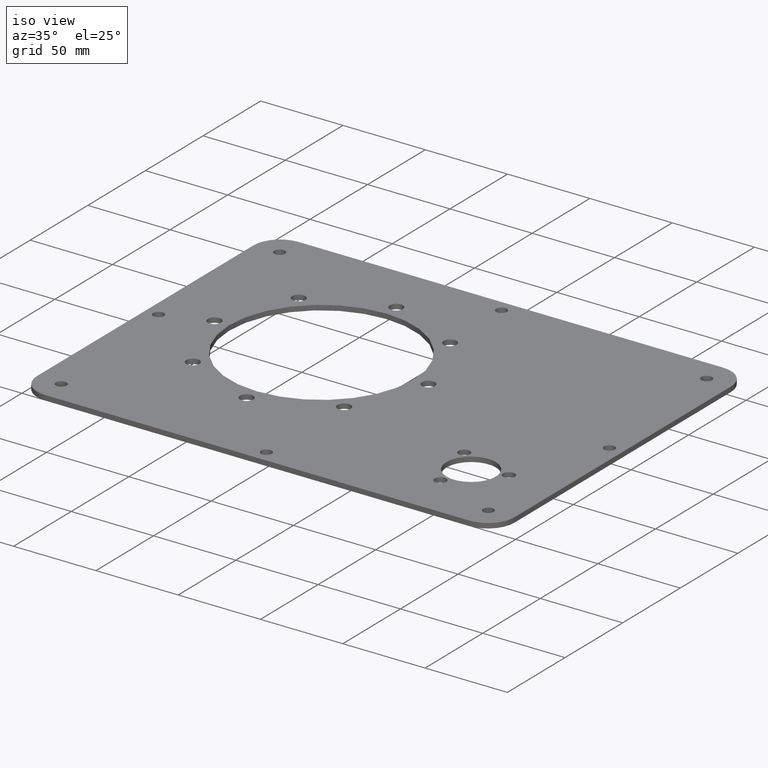
[diagram: clean part render]
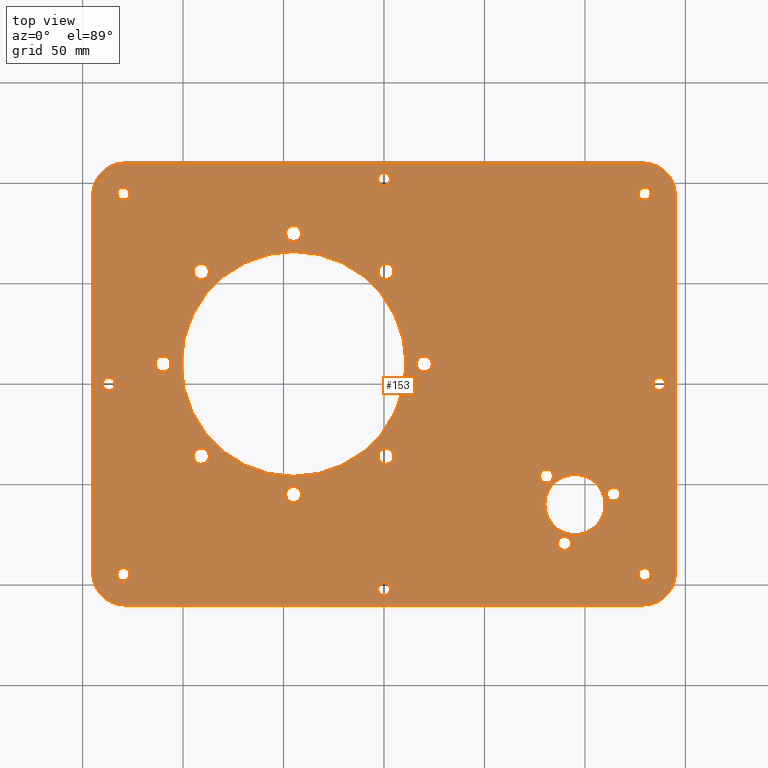
[diagram: tour spotlight — one face highlighted and labeled with its STEP entity id]
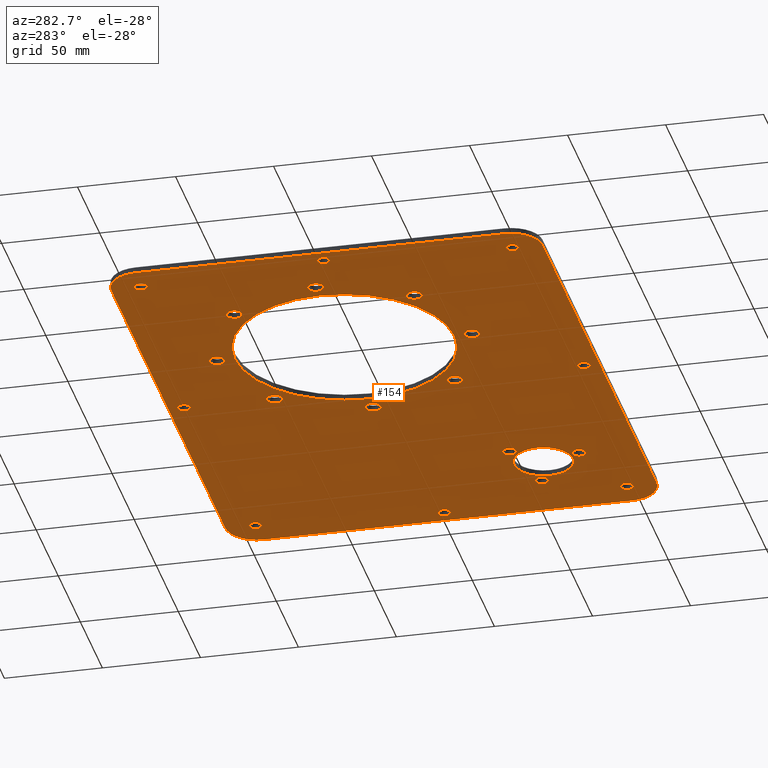
[diagram: tour spotlight — one face highlighted and labeled with its STEP entity id]
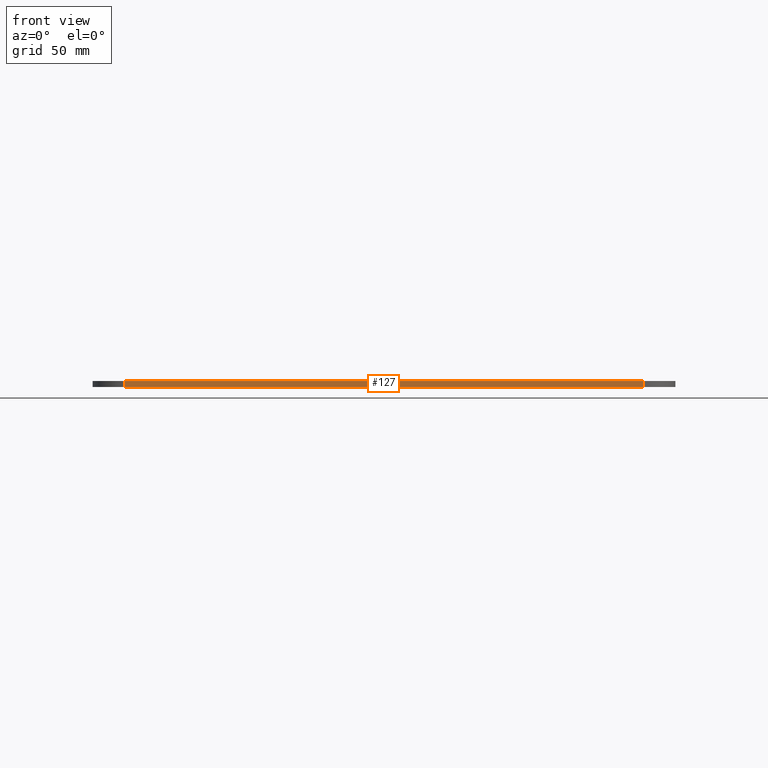
[diagram: tour spotlight — one face highlighted and labeled with its STEP entity id]
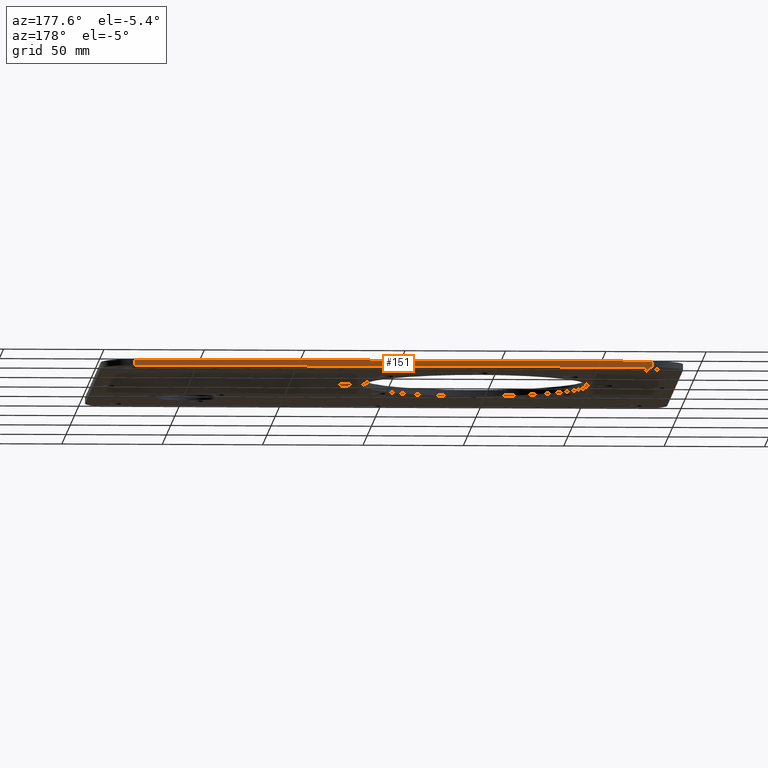
[diagram: tour spotlight — one face highlighted and labeled with its STEP entity id]
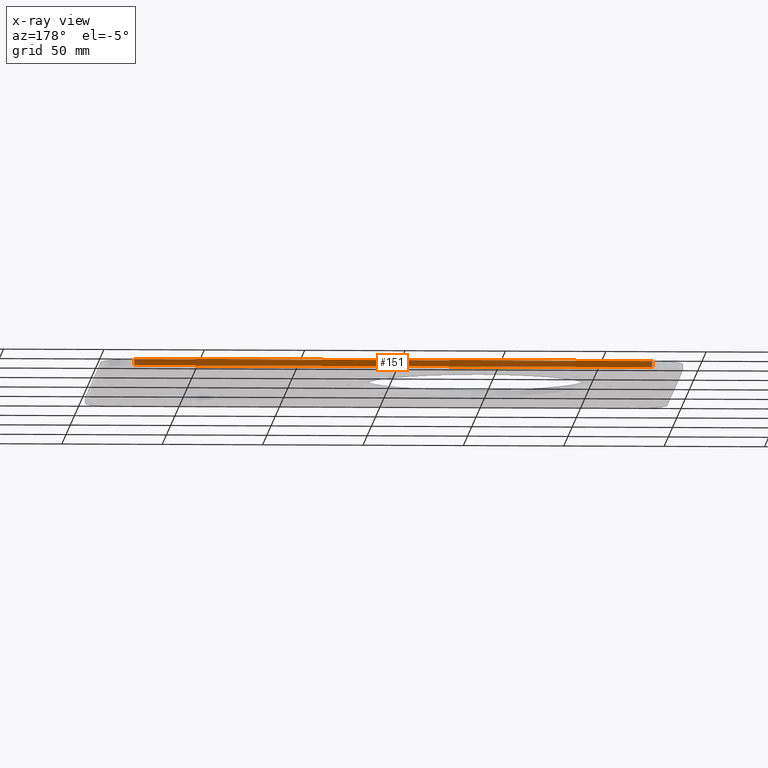
[diagram: x-ray of the same camera — body ghosted, this tour face saturated]
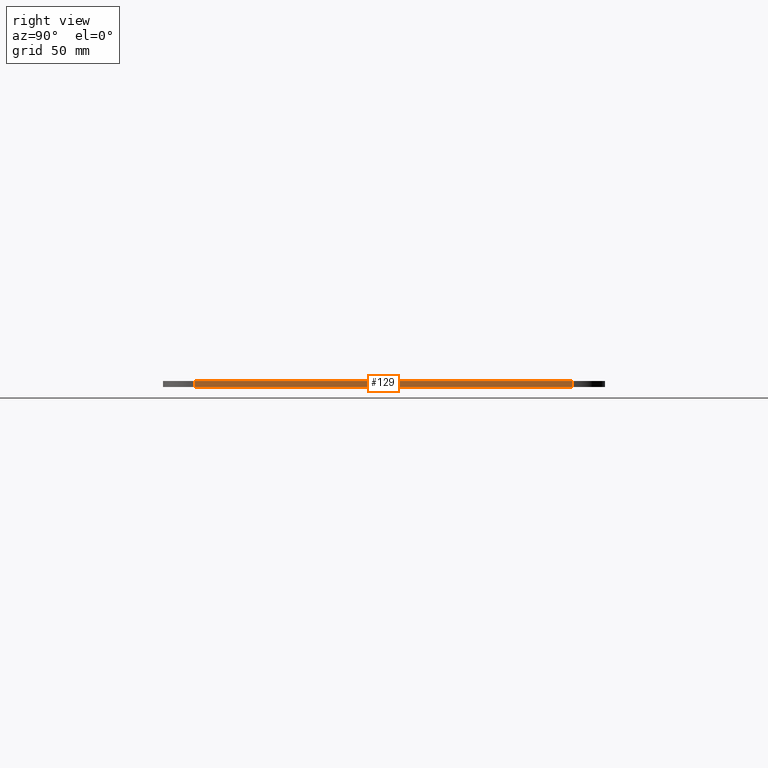
[diagram: tour spotlight — one face highlighted and labeled with its STEP entity id]
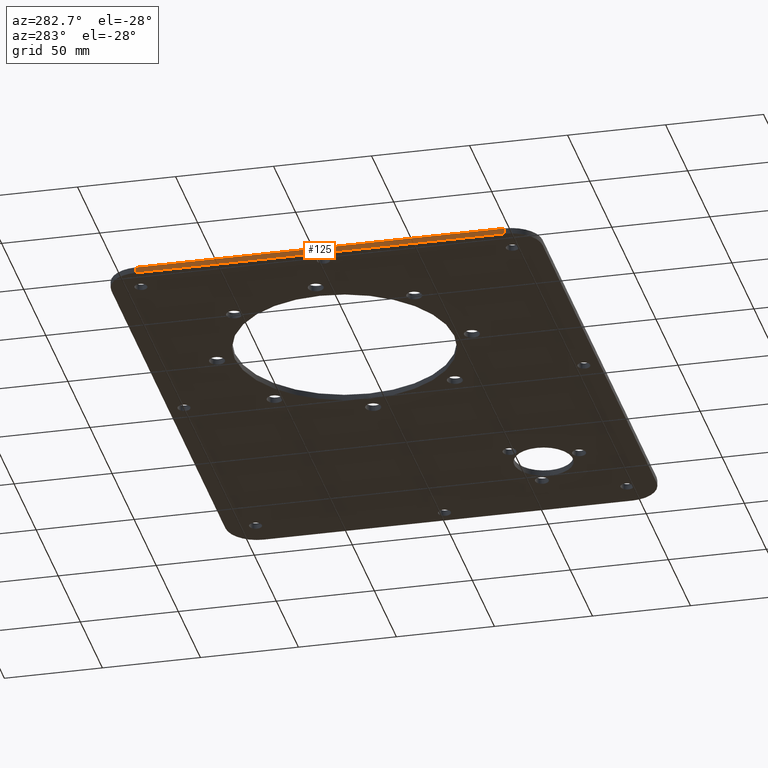
[diagram: tour spotlight — one face highlighted and labeled with its STEP entity id]
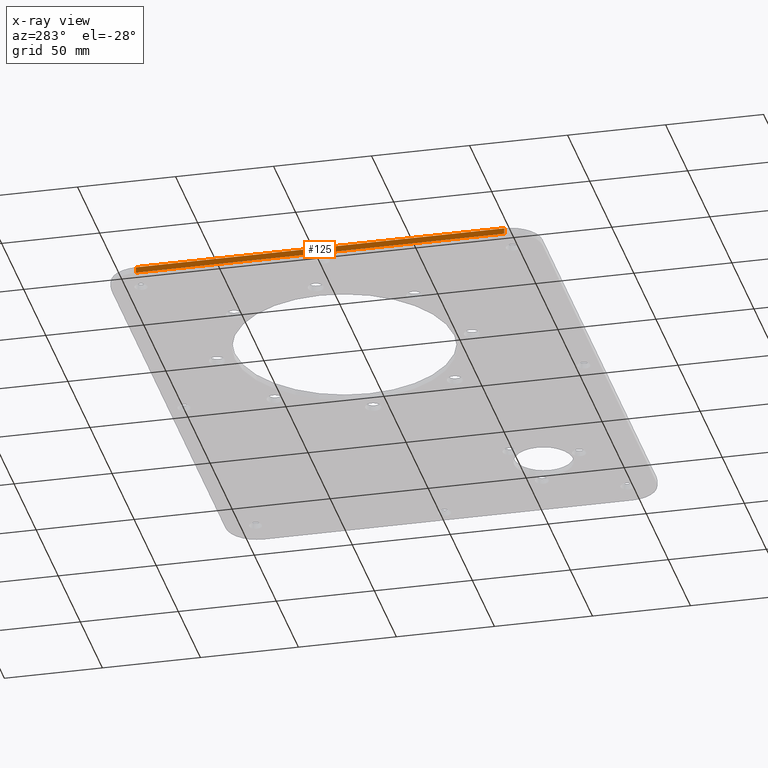
[diagram: x-ray of the same camera — body ghosted, this tour face saturated]
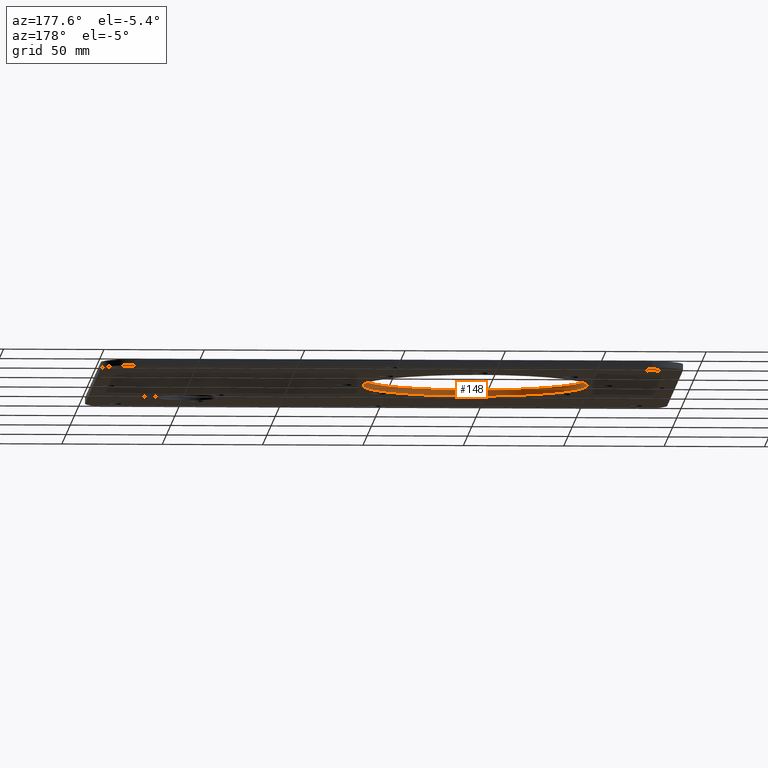
[diagram: tour spotlight — one face highlighted and labeled with its STEP entity id]
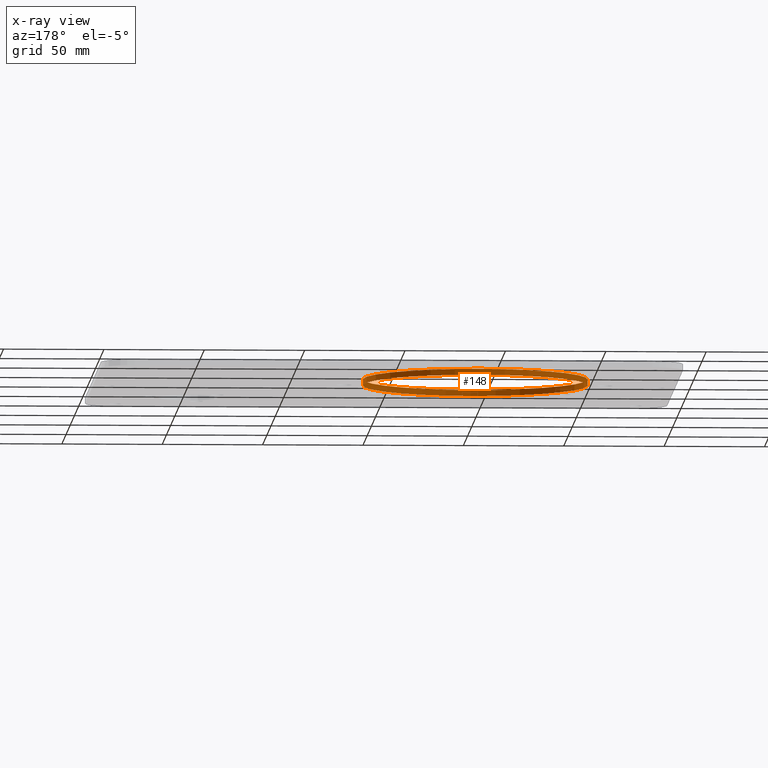
[diagram: x-ray of the same camera — body ghosted, this tour face saturated]
A machine part: a face-by-face anatomy tour. The part has 31 B-rep faces; the first image is the clean iso view, then the 7 largest visible faces are spotlighted one at a time (largest first), each with its STEP entity span.

Face 1 — top view, entity #153. In plain terms, the highlighted planar face has unit normal (0, 0, 1).
Definition (entity closure, byte-faithful):
#76=FACE_BOUND('',#241,.T.);
#77=FACE_BOUND('',#242,.T.);
#78=FACE_BOUND('',#243,.T.);
#79=FACE_BOUND('',#244,.T.);
#80=FACE_BOUND('',#245,.T.);
#81=FACE_BOUND('',#246,.T.);
#82=FACE_BOUND('',#247,.T.);
#83=FACE_BOUND('',#248,.T.);
#84=FACE_BOUND('',#249,.T.);
#85=FACE_BOUND('',#250,.T.);
#86=FACE_BOUND('',#251,.T.);
#87=FACE_BOUND('',#252,.T.);
#88=FACE_BOUND('',#253,.T.);
#89=FACE_BOUND('',#254,.T.);
#90=FACE_BOUND('',#255,.T.);
#91=FACE_BOUND('',#256,.T.);
#92=FACE_BOUND('',#257,.T.);
#93=FACE_BOUND('',#258,.T.);
#94=FACE_BOUND('',#259,.T.);
#95=FACE_BOUND('',#260,.T.);
#96=FACE_BOUND('',#261,.T.);
#122=PLANE('',#702);
#153=ADVANCED_FACE('',(#188,#76,#77,#78,#79,#80,#81,#82,#83,#84,#85,#86,
#87,#88,#89,#90,#91,#92,#93,#94,#95,#96),#122,.T.);
#188=FACE_OUTER_BOUND('',#240,.T.);
#240=EDGE_LOOP('',(#390,#391,#392,#393,#394,#395,#396,#397));
#241=EDGE_LOOP('',(#398));
#242=EDGE_LOOP('',(#399));
#243=EDGE_LOOP('',(#400));
#244=EDGE_LOOP('',(#401));
#245=EDGE_LOOP('',(#402));
#246=EDGE_LOOP('',(#403));
#247=EDGE_LOOP('',(#404));
#248=EDGE_LOOP('',(#405));
#249=EDGE_LOOP('',(#406));
#250=EDGE_LOOP('',(#407));
#251=EDGE_LOOP('',(#408));
#252=EDGE_LOOP('',(#409));
#253=EDGE_LOOP('',(#410));
#254=EDGE_LOOP('',(#411));
#255=EDGE_LOOP('',(#412));
#256=EDGE_LOOP('',(#413));
#257=EDGE_LOOP('',(#414));
#258=EDGE_LOOP('',(#415));
#259=EDGE_LOOP('',(#416));
#260=EDGE_LOOP('',(#417));
#261=EDGE_LOOP('',(#418));
#288=LINE('',#898,#304);
#292=LINE('',#910,#308);
#296=LINE('',#922,#312);
#299=LINE('',#1031,#315);
#304=VECTOR('',#716,1.);
#308=VECTOR('',#728,1.);
#312=VECTOR('',#740,1.);
#315=VECTOR('',#871,1.);
#390=ORIENTED_EDGE('',*,*,#508,.T.);
#391=ORIENTED_EDGE('',*,*,#512,.T.);
#392=ORIENTED_EDGE('',*,*,#515,.T.);
#393=ORIENTED_EDGE('',*,*,#518,.T.);
#394=ORIENTED_EDGE('',*,*,#521,.T.);
#395=ORIENTED_EDGE('',*,*,#524,.T.);
#396=ORIENTED_EDGE('',*,*,#527,.T.);
#397=ORIENTED_EDGE('',*,*,#569,.T.);
#398=ORIENTED_EDGE('',*,*,#566,.F.);
#399=ORIENTED_EDGE('',*,*,#564,.F.);
#400=ORIENTED_EDGE('',*,*,#562,.F.);
#401=ORIENTED_EDGE('',*,*,#560,.F.);
#402=ORIENTED_EDGE('',*,*,#558,.F.);
#403=ORIENTED_EDGE('',*,*,#556,.F.);
#404=ORIENTED_EDGE('',*,*,#554,.F.);
#405=ORIENTED_EDGE('',*,*,#552,.F.);
#406=ORIENTED_EDGE('',*,*,#550,.F.);
#407=ORIENTED_EDGE('',*,*,#548,.T.);
#408=ORIENTED_EDGE('',*,*,#546,.F.);
#409=ORIENTED_EDGE('',*,*,#544,.F.);
#410=ORIENTED_EDGE('',*,*,#542,.F.);
#411=ORIENTED_EDGE('',*,*,#540,.T.);
#412=ORIENTED_EDGE('',*,*,#538,.F.);
#413=ORIENTED_EDGE('',*,*,#536,.F.);
#414=ORIENTED_EDGE('',*,*,#534,.T.);
#415=ORIENTED_EDGE('',*,*,#532,.F.);
#416=ORIENTED_EDGE('',*,*,#530,.F.);
#417=ORIENTED_EDGE('',*,*,#528,.T.);
#418=ORIENTED_EDGE('',*,*,#570,.F.);
#450=VERTEX_POINT('',#889);
#451=VERTEX_POINT('',#891);
#453=VERTEX_POINT('',#897);
#455=VERTEX_POINT('',#903);
#457=VERTEX_POINT('',#909);
#459=VERTEX_POINT('',#915);
#461=VERTEX_POINT('',#921);
#463=VERTEX_POINT('',#927);
#464=VERTEX_POINT('',#931);
#466=VERTEX_POINT('',#936);
#468=VERTEX_POINT('',#941);
#470=VERTEX_POINT('',#946);
#472=VERTEX_POINT('',#951);
#474=VERTEX_POINT('',#956);
#476=VERTEX_POINT('',#961);
#478=VERTEX_POINT('',#966);
#480=VERTEX_POINT('',#971);
#482=VERTEX_POINT('',#976);
#484=VERTEX_POINT('',#981);
#486=VERTEX_POINT('',#986);
#488=VERTEX_POINT('',#991);
#490=VERTEX_POINT('',#996);
#492=VERTEX_POINT('',#1001);
#494=VERTEX_POINT('',#1006);
#496=VERTEX_POINT('',#1011);
#498=VERTEX_POINT('',#1016);
#500=VERTEX_POINT('',#1021);
#502=VERTEX_POINT('',#1026);
#504=VERTEX_POINT('',#1034);
#508=EDGE_CURVE('',#451,#450,#573,.T.);
#512=EDGE_CURVE('',#450,#453,#288,.T.);
#515=EDGE_CURVE('',#453,#455,#575,.T.);
#518=EDGE_CURVE('',#455,#457,#292,.T.);
#521=EDGE_CURVE('',#457,#459,#577,.T.);
#524=EDGE_CURVE('',#459,#461,#296,.T.);
#527=EDGE_CURVE('',#461,#463,#579,.T.);
#528=EDGE_CURVE('',#464,#464,#580,.T.);
#530=EDGE_CURVE('',#466,#466,#582,.T.);
#532=EDGE_CURVE('',#468,#468,#584,.T.);
#534=EDGE_CURVE('',#470,#470,#586,.T.);
#536=EDGE_CURVE('',#472,#472,#588,.T.);
#538=EDGE_CURVE('',#474,#474,#590,.T.);
#540=EDGE_CURVE('',#476,#476,#592,.T.);
#542=EDGE_CURVE('',#478,#478,#594,.T.);
#544=EDGE_CURVE('',#480,#480,#596,.T.);
#546=EDGE_CURVE('',#482,#482,#598,.T.);
#548=EDGE_CURVE('',#484,#484,#600,.T.);
#550=EDGE_CURVE('',#486,#486,#602,.T.);
#552=EDGE_CURVE('',#488,#488,#604,.T.);
#554=EDGE_CURVE('',#490,#490,#606,.T.);
#556=EDGE_CURVE('',#492,#492,#608,.T.);
#558=EDGE_CURVE('',#494,#494,#610,.T.);
#560=EDGE_CURVE('',#496,#496,#612,.T.);
#562=EDGE_CURVE('',#498,#498,#614,.T.);
#564=EDGE_CURVE('',#500,#500,#616,.T.);
#566=EDGE_CURVE('',#502,#502,#618,.T.);
#569=EDGE_CURVE('',#463,#451,#299,.T.);
#570=EDGE_CURVE('',#504,#504,#620,.T.);
#573=CIRCLE('',#624,16.);
#575=CIRCLE('',#628,16.);
#577=CIRCLE('',#632,16.);
#579=CIRCLE('',#636,16.);
#580=CIRCLE('',#638,3.25);
#582=CIRCLE('',#641,4.);
#584=CIRCLE('',#644,4.);
#586=CIRCLE('',#647,3.25);
#588=CIRCLE('',#650,3.5);
#590=CIRCLE('',#653,3.5);
#592=CIRCLE('',#656,3.25);
#594=CIRCLE('',#659,4.);
#596=CIRCLE('',#662,15.);
#598=CIRCLE('',#665,4.);
#600=CIRCLE('',#668,3.25);
#602=CIRCLE('',#671,3.25);
#604=CIRCLE('',#674,4.);
#606=CIRCLE('',#677,3.25);
#608=CIRCLE('',#680,3.25);
#610=CIRCLE('',#683,3.5);
#612=CIRCLE('',#686,4.);
#614=CIRCLE('',#689,56.);
#616=CIRCLE('',#692,4.);
#618=CIRCLE('',#695,4.);
#620=CIRCLE('',#699,3.25);
#624=AXIS2_PLACEMENT_3D('',#890,#709,#710);
#628=AXIS2_PLACEMENT_3D('',#904,#722,#723);
#632=AXIS2_PLACEMENT_3D('',#916,#734,#735);
#636=AXIS2_PLACEMENT_3D('',#928,#746,#747);
#638=AXIS2_PLACEMENT_3D('',#930,#750,#751);
#641=AXIS2_PLACEMENT_3D('',#935,#756,#757);
#644=AXIS2_PLACEMENT_3D('',#940,#762,#763);
#647=AXIS2_PLACEMENT_3D('',#945,#768,#769);
#650=AXIS2_PLACEMENT_3D('',#950,#774,#775);
#653=AXIS2_PLACEMENT_3D('',#955,#780,#781);
#656=AXIS2_PLACEMENT_3D('',#960,#786,#787);
#659=AXIS2_PLACEMENT_3D('',#965,#792,#793);
#662=AXIS2_PLACEMENT_3D('',#970,#798,#799);
#665=AXIS2_PLACEMENT_3D('',#975,#804,#805);
#668=AXIS2_PLACEMENT_3D('',#980,#810,#811);
#671=AXIS2_PLACEMENT_3D('',#985,#816,#817);
#674=AXIS2_PLACEMENT_3D('',#990,#822,#823);
#677=AXIS2_PLACEMENT_3D('',#995,#828,#829);
#680=AXIS2_PLACEMENT_3D('',#1000,#834,#835);
#683=AXIS2_PLACEMENT_3D('',#1005,#840,#841);
#686=AXIS2_PLACEMENT_3D('',#1010,#846,#847);
#689=AXIS2_PLACEMENT_3D('',#1015,#852,#853);
#692=AXIS2_PLACEMENT_3D('',#1020,#858,#859);
#695=AXIS2_PLACEMENT_3D('',#1025,#864,#865);
#699=AXIS2_PLACEMENT_3D('',#1033,#874,#875);
#702=AXIS2_PLACEMENT_3D('',#1038,#880,#881);
#709=DIRECTION('',(0.,0.,1.));
#710=DIRECTION('',(1.,0.,0.));
#716=DIRECTION('',(0.,-1.,0.));
#722=DIRECTION('',(0.,0.,1.));
#723=DIRECTION('',(1.,0.,0.));
#728=DIRECTION('',(1.,0.,0.));
#734=DIRECTION('',(0.,0.,1.));
#735=DIRECTION('',(1.,0.,0.));
#740=DIRECTION('',(0.,1.,0.));
#746=DIRECTION('',(0.,0.,1.));
#747=DIRECTION('',(1.,0.,0.));
#750=DIRECTION('',(0.,0.,-1.));
#751=DIRECTION('',(-1.00000000000013,0.,0.));
#756=DIRECTION('',(0.,0.,1.));
#757=DIRECTION('',(0.,1.,0.));
#762=DIRECTION('',(0.,0.,1.));
#763=DIRECTION('',(0.707106781186573,-0.707106781186573,0.));
#768=DIRECTION('',(0.,0.,-1.));
#769=DIRECTION('',(-1.00000000000013,0.,0.));
#774=DIRECTION('',(0.,0.,1.));
#775=DIRECTION('',(-0.258819045102499,-0.96592582628904,0.));
#780=DIRECTION('',(0.,0.,1.));
#781=DIRECTION('',(-0.707106781186541,0.707106781186541,0.));
#786=DIRECTION('',(0.,0.,-1.));
#787=DIRECTION('',(1.00000000000013,0.,0.));
#792=DIRECTION('',(0.,0.,1.));
#793=DIRECTION('',(-0.707106781186573,0.707106781186573,0.));
#798=DIRECTION('',(0.,0.,1.));
#799=DIRECTION('',(0.999999999999979,0.,0.));
#804=DIRECTION('',(0.,0.,1.));
#805=DIRECTION('',(0.,-1.,0.));
#810=DIRECTION('',(0.,0.,-1.));
#811=DIRECTION('',(1.00000000000013,0.,0.));
#816=DIRECTION('',(0.,0.,1.));
#817=DIRECTION('',(1.00000000000013,0.,0.));
#822=DIRECTION('',(0.,0.,1.));
#823=DIRECTION('',(0.707106781186573,0.707106781186573,0.));
#828=DIRECTION('',(0.,0.,1.));
#829=DIRECTION('',(-1.00000000000013,0.,0.));
#834=DIRECTION('',(0.,0.,1.));
#835=DIRECTION('',(1.00000000000013,0.,0.));
#840=DIRECTION('',(0.,0.,1.));
#841=DIRECTION('',(0.96592582628904,0.258819045102499,0.));
#846=DIRECTION('',(0.,0.,1.));
#847=DIRECTION('',(-0.99999999999989,0.,0.));
#852=DIRECTION('',(0.,0.,1.));
#853=DIRECTION('',(1.,0.,0.));
#858=DIRECTION('',(0.,0.,1.));
#859=DIRECTION('',(-0.707106781186573,-0.707106781186573,0.));
#864=DIRECTION('',(0.,0.,1.));
#865=DIRECTION('',(0.99999999999989,0.,0.));
#871=DIRECTION('',(-1.,0.,0.));
#874=DIRECTION('',(0.,0.,1.));
#875=DIRECTION('',(1.00000000000013,0.,0.));
#880=DIRECTION('',(0.,0.,1.));
#881=DIRECTION('',(1.,0.,0.));
#889=CARTESIAN_POINT('',(4855.,-1906.,3.));
#890=CARTESIAN_POINT('',(4871.,-1906.,3.));
#891=CARTESIAN_POINT('',(4871.,-1890.,3.));
#897=CARTESIAN_POINT('',(4855.,-2094.,3.));
#898=CARTESIAN_POINT('',(4855.,-1906.,3.));
#903=CARTESIAN_POINT('',(4871.,-2110.,3.));
#904=CARTESIAN_POINT('',(4871.,-2094.,3.));
#909=CARTESIAN_POINT('',(5129.,-2110.,3.));
#910=CARTESIAN_POINT('',(4871.,-2110.,3.));
#915=CARTESIAN_POINT('',(5145.,-2094.,3.));
#916=CARTESIAN_POINT('',(5129.,-2094.,3.));
#921=CARTESIAN_POINT('',(5145.,-1906.,3.));
#922=CARTESIAN_POINT('',(5145.,-2094.,3.));
#927=CARTESIAN_POINT('',(5129.,-1890.,3.));
#928=CARTESIAN_POINT('',(5129.,-1906.,3.));
#930=CARTESIAN_POINT('',(5129.72792206136,-1905.27207793864,3.));
#931=CARTESIAN_POINT('',(5126.47792206136,-1905.27207793864,3.));
#935=CARTESIAN_POINT('',(4955.,-1925.,3.));
#936=CARTESIAN_POINT('',(4955.,-1921.,3.));
#940=CARTESIAN_POINT('',(5000.96194077713,-2035.96194077712,3.));
#941=CARTESIAN_POINT('',(5003.79036790188,-2038.79036790187,3.));
#945=CARTESIAN_POINT('',(5137.,-2000.,3.));
#946=CARTESIAN_POINT('',(5133.75,-2000.,3.));
#950=CARTESIAN_POINT('',(5089.82361909796,-2079.31851652578,3.));
#951=CARTESIAN_POINT('',(5088.9177524401,-2082.6992569178,3.));
#955=CARTESIAN_POINT('',(5080.85786437627,-2045.85786437626,3.));
#956=CARTESIAN_POINT('',(5078.38299064212,-2043.38299064211,3.));
#960=CARTESIAN_POINT('',(4870.27207793864,-2094.72792206136,3.));
#961=CARTESIAN_POINT('',(4873.52207793864,-2094.72792206136,3.));
#965=CARTESIAN_POINT('',(4909.03805922287,-1944.03805922287,3.));
#966=CARTESIAN_POINT('',(4906.20963209813,-1941.20963209813,3.));
#970=CARTESIAN_POINT('',(5095.,-2060.,3.));
#971=CARTESIAN_POINT('',(5110.,-2060.,3.));
#975=CARTESIAN_POINT('',(4954.99999999953,-2055.00000000113,3.));
#976=CARTESIAN_POINT('',(4954.99999999953,-2059.00000000113,3.));
#980=CARTESIAN_POINT('',(5000.,-2102.,3.));
#981=CARTESIAN_POINT('',(5003.25,-2102.,3.));
#985=CARTESIAN_POINT('',(4870.27207793864,-1905.27207793864,3.));
#986=CARTESIAN_POINT('',(4873.52207793864,-1905.27207793864,3.));
#990=CARTESIAN_POINT('',(5000.96194077712,-1944.03805922287,3.));
#991=CARTESIAN_POINT('',(5003.79036790187,-1941.20963209813,3.));
#995=CARTESIAN_POINT('',(5129.72792206136,-2094.72792206136,3.));
#996=CARTESIAN_POINT('',(5126.47792206136,-2094.72792206136,3.));
#1000=CARTESIAN_POINT('',(4863.,-2000.,3.));
#1001=CARTESIAN_POINT('',(4866.25,-2000.,3.));
#1005=CARTESIAN_POINT('',(5114.31851652578,-2054.82361909795,3.));
#1006=CARTESIAN_POINT('',(5117.69925691779,-2053.91775244009,3.));
#1010=CARTESIAN_POINT('',(4890.,-1990.,3.));
#1011=CARTESIAN_POINT('',(4886.,-1990.,3.));
#1015=CARTESIAN_POINT('',(4955.,-1990.,3.));
#1016=CARTESIAN_POINT('',(5011.,-1990.,3.));
#1020=CARTESIAN_POINT('',(4909.03805922287,-2035.96194077713,3.));
#1021=CARTESIAN_POINT('',(4906.20963209813,-2038.79036790187,3.));
#1025=CARTESIAN_POINT('',(5020.,-1990.,3.));
#1026=CARTESIAN_POINT('',(5024.,-1990.,3.));
#1031=CARTESIAN_POINT('',(5129.,-1890.,3.));
#1033=CARTESIAN_POINT('',(5000.,-1898.,3.));
#1034=CARTESIAN_POINT('',(5003.25,-1898.,3.));
#1038=CARTESIAN_POINT('',(4871.,-1906.,3.));

Face 2 — auxiliary view, entity #154. In plain terms, the highlighted planar face has unit normal (0, 0, 1).
Definition (entity closure, byte-faithful):
#97=FACE_BOUND('',#263,.T.);
#98=FACE_BOUND('',#264,.T.);
#99=FACE_BOUND('',#265,.T.);
#100=FACE_BOUND('',#266,.T.);
#101=FACE_BOUND('',#267,.T.);
#102=FACE_BOUND('',#268,.T.);
#103=FACE_BOUND('',#269,.T.);
#104=FACE_BOUND('',#270,.T.);
#105=FACE_BOUND('',#271,.T.);
#106=FACE_BOUND('',#272,.T.);
#107=FACE_BOUND('',#273,.T.);
#108=FACE_BOUND('',#274,.T.);
#109=FACE_BOUND('',#275,.T.);
#110=FACE_BOUND('',#276,.T.);
#111=FACE_BOUND('',#277,.T.);
#112=FACE_BOUND('',#278,.T.);
#113=FACE_BOUND('',#279,.T.);
#114=FACE_BOUND('',#280,.T.);
#115=FACE_BOUND('',#281,.T.);
#116=FACE_BOUND('',#282,.T.);
#117=FACE_BOUND('',#283,.T.);
#123=PLANE('',#703);
#154=ADVANCED_FACE('',(#189,#97,#98,#99,#100,#101,#102,#103,#104,#105,#106,
#107,#108,#109,#110,#111,#112,#113,#114,#115,#116,#117),#123,.F.);
#189=FACE_OUTER_BOUND('',#262,.T.);
#262=EDGE_LOOP('',(#419,#420,#421,#422,#423,#424,#425,#426));
#263=EDGE_LOOP('',(#427));
#264=EDGE_LOOP('',(#428));
#265=EDGE_LOOP('',(#429));
#266=EDGE_LOOP('',(#430));
#267=EDGE_LOOP('',(#431));
#268=EDGE_LOOP('',(#432));
#269=EDGE_LOOP('',(#433));
#270=EDGE_LOOP('',(#434));
#271=EDGE_LOOP('',(#435));
#272=EDGE_LOOP('',(#436));
#273=EDGE_LOOP('',(#437));
#274=EDGE_LOOP('',(#438));
#275=EDGE_LOOP('',(#439));
#276=EDGE_LOOP('',(#440));
#277=EDGE_LOOP('',(#441));
#278=EDGE_LOOP('',(#442));
#279=EDGE_LOOP('',(#443));
#280=EDGE_LOOP('',(#444));
#281=EDGE_LOOP('',(#445));
#282=EDGE_LOOP('',(#446));
#283=EDGE_LOOP('',(#447));
#286=LINE('',#894,#302);
#290=LINE('',#906,#306);
#294=LINE('',#918,#310);
#298=LINE('',#1030,#314);
#302=VECTOR('',#714,1.);
#306=VECTOR('',#726,1.);
#310=VECTOR('',#738,1.);
#314=VECTOR('',#870,1.);
#419=ORIENTED_EDGE('',*,*,#506,.F.);
#420=ORIENTED_EDGE('',*,*,#568,.F.);
#421=ORIENTED_EDGE('',*,*,#525,.F.);
#422=ORIENTED_EDGE('',*,*,#522,.F.);
#423=ORIENTED_EDGE('',*,*,#519,.F.);
#424=ORIENTED_EDGE('',*,*,#516,.F.);
#425=ORIENTED_EDGE('',*,*,#513,.F.);
#426=ORIENTED_EDGE('',*,*,#510,.F.);
#427=ORIENTED_EDGE('',*,*,#567,.T.);
#428=ORIENTED_EDGE('',*,*,#565,.T.);
#429=ORIENTED_EDGE('',*,*,#563,.T.);
#430=ORIENTED_EDGE('',*,*,#561,.T.);
#431=ORIENTED_EDGE('',*,*,#559,.T.);
#432=ORIENTED_EDGE('',*,*,#557,.T.);
#433=ORIENTED_EDGE('',*,*,#555,.T.);
#434=ORIENTED_EDGE('',*,*,#553,.T.);
#435=ORIENTED_EDGE('',*,*,#551,.T.);
#436=ORIENTED_EDGE('',*,*,#549,.F.);
#437=ORIENTED_EDGE('',*,*,#547,.T.);
#438=ORIENTED_EDGE('',*,*,#545,.T.);
#439=ORIENTED_EDGE('',*,*,#543,.T.);
#440=ORIENTED_EDGE('',*,*,#541,.F.);
#441=ORIENTED_EDGE('',*,*,#539,.T.);
#442=ORIENTED_EDGE('',*,*,#537,.T.);
#443=ORIENTED_EDGE('',*,*,#535,.F.);
#444=ORIENTED_EDGE('',*,*,#533,.T.);
#445=ORIENTED_EDGE('',*,*,#531,.T.);
#446=ORIENTED_EDGE('',*,*,#529,.F.);
#447=ORIENTED_EDGE('',*,*,#571,.T.);
#448=VERTEX_POINT('',#886);
#449=VERTEX_POINT('',#887);
#452=VERTEX_POINT('',#895);
#454=VERTEX_POINT('',#901);
#456=VERTEX_POINT('',#907);
#458=VERTEX_POINT('',#913);
#460=VERTEX_POINT('',#919);
#462=VERTEX_POINT('',#925);
#465=VERTEX_POINT('',#933);
#467=VERTEX_POINT('',#938);
#469=VERTEX_POINT('',#943);
#471=VERTEX_POINT('',#948);
#473=VERTEX_POINT('',#953);
#475=VERTEX_POINT('',#958);
#477=VERTEX_POINT('',#963);
#479=VERTEX_POINT('',#968);
#481=VERTEX_POINT('',#973);
#483=VERTEX_POINT('',#978);
#485=VERTEX_POINT('',#983);
#487=VERTEX_POINT('',#988);
#489=VERTEX_POINT('',#993);
#491=VERTEX_POINT('',#998);
#493=VERTEX_POINT('',#1003);
#495=VERTEX_POINT('',#1008);
#497=VERTEX_POINT('',#1013);
#499=VERTEX_POINT('',#1018);
#501=VERTEX_POINT('',#1023);
#503=VERTEX_POINT('',#1028);
#505=VERTEX_POINT('',#1036);
#506=EDGE_CURVE('',#448,#449,#572,.T.);
#510=EDGE_CURVE('',#449,#452,#286,.T.);
#513=EDGE_CURVE('',#452,#454,#574,.T.);
#516=EDGE_CURVE('',#454,#456,#290,.T.);
#519=EDGE_CURVE('',#456,#458,#576,.T.);
#522=EDGE_CURVE('',#458,#460,#294,.T.);
#525=EDGE_CURVE('',#460,#462,#578,.T.);
#529=EDGE_CURVE('',#465,#465,#581,.T.);
#531=EDGE_CURVE('',#467,#467,#583,.T.);
#533=EDGE_CURVE('',#469,#469,#585,.T.);
#535=EDGE_CURVE('',#471,#471,#587,.T.);
#537=EDGE_CURVE('',#473,#473,#589,.T.);
#539=EDGE_CURVE('',#475,#475,#591,.T.);
#541=EDGE_CURVE('',#477,#477,#593,.T.);
#543=EDGE_CURVE('',#479,#479,#595,.T.);
#545=EDGE_CURVE('',#481,#481,#597,.T.);
#547=EDGE_CURVE('',#483,#483,#599,.T.);
#549=EDGE_CURVE('',#485,#485,#601,.T.);
#551=EDGE_CURVE('',#487,#487,#603,.T.);
#553=EDGE_CURVE('',#489,#489,#605,.T.);
#555=EDGE_CURVE('',#491,#491,#607,.T.);
#557=EDGE_CURVE('',#493,#493,#609,.T.);
#559=EDGE_CURVE('',#495,#495,#611,.T.);
#561=EDGE_CURVE('',#497,#497,#613,.T.);
#563=EDGE_CURVE('',#499,#499,#615,.T.);
#565=EDGE_CURVE('',#501,#501,#617,.T.);
#567=EDGE_CURVE('',#503,#503,#619,.T.);
#568=EDGE_CURVE('',#462,#448,#298,.T.);
#571=EDGE_CURVE('',#505,#505,#621,.T.);
#572=CIRCLE('',#623,16.);
#574=CIRCLE('',#627,16.);
#576=CIRCLE('',#631,16.);
#578=CIRCLE('',#635,16.);
#581=CIRCLE('',#639,3.25);
#583=CIRCLE('',#642,4.);
#585=CIRCLE('',#645,4.);
#587=CIRCLE('',#648,3.25);
#589=CIRCLE('',#651,3.5);
#591=CIRCLE('',#654,3.5);
#593=CIRCLE('',#657,3.25);
#595=CIRCLE('',#660,4.);
#597=CIRCLE('',#663,15.);
#599=CIRCLE('',#666,4.);
#601=CIRCLE('',#669,3.25);
#603=CIRCLE('',#672,3.25);
#605=CIRCLE('',#675,4.);
#607=CIRCLE('',#678,3.25);
#609=CIRCLE('',#681,3.25);
#611=CIRCLE('',#684,3.5);
#613=CIRCLE('',#687,4.);
#615=CIRCLE('',#690,56.);
#617=CIRCLE('',#693,4.);
#619=CIRCLE('',#696,4.);
#621=CIRCLE('',#700,3.25);
#623=AXIS2_PLACEMENT_3D('',#885,#706,#707);
#627=AXIS2_PLACEMENT_3D('',#900,#719,#720);
#631=AXIS2_PLACEMENT_3D('',#912,#731,#732);
#635=AXIS2_PLACEMENT_3D('',#924,#743,#744);
#639=AXIS2_PLACEMENT_3D('',#932,#752,#753);
#642=AXIS2_PLACEMENT_3D('',#937,#758,#759);
#645=AXIS2_PLACEMENT_3D('',#942,#764,#765);
#648=AXIS2_PLACEMENT_3D('',#947,#770,#771);
#651=AXIS2_PLACEMENT_3D('',#952,#776,#777);
#654=AXIS2_PLACEMENT_3D('',#957,#782,#783);
#657=AXIS2_PLACEMENT_3D('',#962,#788,#789);
#660=AXIS2_PLACEMENT_3D('',#967,#794,#795);
#663=AXIS2_PLACEMENT_3D('',#972,#800,#801);
#666=AXIS2_PLACEMENT_3D('',#977,#806,#807);
#669=AXIS2_PLACEMENT_3D('',#982,#812,#813);
#672=AXIS2_PLACEMENT_3D('',#987,#818,#819);
#675=AXIS2_PLACEMENT_3D('',#992,#824,#825);
#678=AXIS2_PLACEMENT_3D('',#997,#830,#831);
#681=AXIS2_PLACEMENT_3D('',#1002,#836,#837);
#684=AXIS2_PLACEMENT_3D('',#1007,#842,#843);
#687=AXIS2_PLACEMENT_3D('',#1012,#848,#849);
#690=AXIS2_PLACEMENT_3D('',#1017,#854,#855);
#693=AXIS2_PLACEMENT_3D('',#1022,#860,#861);
#696=AXIS2_PLACEMENT_3D('',#1027,#866,#867);
#700=AXIS2_PLACEMENT_3D('',#1035,#876,#877);
#703=AXIS2_PLACEMENT_3D('',#1039,#882,#883);
#706=DIRECTION('',(0.,0.,1.));
#707=DIRECTION('',(1.,0.,0.));
#714=DIRECTION('',(0.,-1.,0.));
#719=DIRECTION('',(0.,0.,1.));
#720=DIRECTION('',(1.,0.,0.));
#726=DIRECTION('',(1.,0.,0.));
#731=DIRECTION('',(0.,0.,1.));
#732=DIRECTION('',(1.,0.,0.));
#738=DIRECTION('',(0.,1.,0.));
#743=DIRECTION('',(0.,0.,1.));
#744=DIRECTION('',(1.,0.,0.));
#752=DIRECTION('',(0.,0.,-1.));
#753=DIRECTION('',(-1.00000000000013,0.,0.));
#758=DIRECTION('',(0.,0.,1.));
#759=DIRECTION('',(0.,1.,0.));
#764=DIRECTION('',(0.,0.,1.));
#765=DIRECTION('',(0.707106781186573,-0.707106781186573,0.));
#770=DIRECTION('',(0.,0.,-1.));
#771=DIRECTION('',(-1.00000000000013,0.,0.));
#776=DIRECTION('',(0.,0.,1.));
#777=DIRECTION('',(-0.258819045102499,-0.96592582628904,0.));
#782=DIRECTION('',(0.,0.,1.));
#783=DIRECTION('',(-0.707106781186541,0.707106781186541,0.));
#788=DIRECTION('',(0.,0.,-1.));
#789=DIRECTION('',(1.00000000000013,0.,0.));
#794=DIRECTION('',(0.,0.,1.));
#795=DIRECTION('',(-0.707106781186573,0.707106781186573,0.));
#800=DIRECTION('',(0.,0.,1.));
#801=DIRECTION('',(0.999999999999979,0.,0.));
#806=DIRECTION('',(0.,0.,1.));
#807=DIRECTION('',(0.,-1.,0.));
#812=DIRECTION('',(0.,0.,-1.));
#813=DIRECTION('',(1.00000000000013,0.,0.));
#818=DIRECTION('',(0.,0.,1.));
#819=DIRECTION('',(1.00000000000013,0.,0.));
#824=DIRECTION('',(0.,0.,1.));
#825=DIRECTION('',(0.707106781186573,0.707106781186573,0.));
#830=DIRECTION('',(0.,0.,1.));
#831=DIRECTION('',(-1.00000000000013,0.,0.));
#836=DIRECTION('',(0.,0.,1.));
#837=DIRECTION('',(1.00000000000013,0.,0.));
#842=DIRECTION('',(0.,0.,1.));
#843=DIRECTION('',(0.96592582628904,0.258819045102499,0.));
#848=DIRECTION('',(0.,0.,1.));
#849=DIRECTION('',(-0.99999999999989,0.,0.));
#854=DIRECTION('',(0.,0.,1.));
#855=DIRECTION('',(1.,0.,0.));
#860=DIRECTION('',(0.,0.,1.));
#861=DIRECTION('',(-0.707106781186573,-0.707106781186573,0.));
#866=DIRECTION('',(0.,0.,1.));
#867=DIRECTION('',(0.99999999999989,0.,0.));
#870=DIRECTION('',(-1.,0.,0.));
#876=DIRECTION('',(0.,0.,1.));
#877=DIRECTION('',(1.00000000000013,0.,0.));
#882=DIRECTION('',(0.,0.,1.));
#883=DIRECTION('',(1.,0.,0.));
#885=CARTESIAN_POINT('',(4871.,-1906.,0.));
#886=CARTESIAN_POINT('',(4871.,-1890.,0.));
#887=CARTESIAN_POINT('',(4855.,-1906.,0.));
#894=CARTESIAN_POINT('',(4855.,-1906.,0.));
#895=CARTESIAN_POINT('',(4855.,-2094.,0.));
#900=CARTESIAN_POINT('',(4871.,-2094.,0.));
#901=CARTESIAN_POINT('',(4871.,-2110.,0.));
#906=CARTESIAN_POINT('',(4871.,-2110.,0.));
#907=CARTESIAN_POINT('',(5129.,-2110.,0.));
#912=CARTESIAN_POINT('',(5129.,-2094.,0.));
#913=CARTESIAN_POINT('',(5145.,-2094.,0.));
#918=CARTESIAN_POINT('',(5145.,-2094.,0.));
#919=CARTESIAN_POINT('',(5145.,-1906.,0.));
#924=CARTESIAN_POINT('',(5129.,-1906.,0.));
#925=CARTESIAN_POINT('',(5129.,-1890.,0.));
#932=CARTESIAN_POINT('',(5129.72792206136,-1905.27207793864,0.));
#933=CARTESIAN_POINT('',(5126.47792206136,-1905.27207793864,0.));
#937=CARTESIAN_POINT('',(4955.,-1925.,0.));
#938=CARTESIAN_POINT('',(4955.,-1921.,0.));
#942=CARTESIAN_POINT('',(5000.96194077713,-2035.96194077712,0.));
#943=CARTESIAN_POINT('',(5003.79036790188,-2038.79036790187,0.));
#947=CARTESIAN_POINT('',(5137.,-2000.,0.));
#948=CARTESIAN_POINT('',(5133.75,-2000.,0.));
#952=CARTESIAN_POINT('',(5089.82361909796,-2079.31851652578,0.));
#953=CARTESIAN_POINT('',(5088.9177524401,-2082.6992569178,0.));
#957=CARTESIAN_POINT('',(5080.85786437627,-2045.85786437626,0.));
#958=CARTESIAN_POINT('',(5078.38299064212,-2043.38299064211,0.));
#962=CARTESIAN_POINT('',(4870.27207793864,-2094.72792206136,0.));
#963=CARTESIAN_POINT('',(4873.52207793864,-2094.72792206136,0.));
#967=CARTESIAN_POINT('',(4909.03805922287,-1944.03805922287,0.));
#968=CARTESIAN_POINT('',(4906.20963209813,-1941.20963209813,0.));
#972=CARTESIAN_POINT('',(5095.,-2060.,0.));
#973=CARTESIAN_POINT('',(5110.,-2060.,0.));
#977=CARTESIAN_POINT('',(4954.99999999953,-2055.00000000113,0.));
#978=CARTESIAN_POINT('',(4954.99999999953,-2059.00000000113,0.));
#982=CARTESIAN_POINT('',(5000.,-2102.,0.));
#983=CARTESIAN_POINT('',(5003.25,-2102.,0.));
#987=CARTESIAN_POINT('',(4870.27207793864,-1905.27207793864,0.));
#988=CARTESIAN_POINT('',(4873.52207793864,-1905.27207793864,0.));
#992=CARTESIAN_POINT('',(5000.96194077712,-1944.03805922287,0.));
#993=CARTESIAN_POINT('',(5003.79036790187,-1941.20963209813,0.));
#997=CARTESIAN_POINT('',(5129.72792206136,-2094.72792206136,0.));
#998=CARTESIAN_POINT('',(5126.47792206136,-2094.72792206136,0.));
#1002=CARTESIAN_POINT('',(4863.,-2000.,0.));
#1003=CARTESIAN_POINT('',(4866.25,-2000.,0.));
#1007=CARTESIAN_POINT('',(5114.31851652578,-2054.82361909795,0.));
#1008=CARTESIAN_POINT('',(5117.69925691779,-2053.91775244009,0.));
#1012=CARTESIAN_POINT('',(4890.,-1990.,0.));
#1013=CARTESIAN_POINT('',(4886.,-1990.,0.));
#1017=CARTESIAN_POINT('',(4955.,-1990.,0.));
#1018=CARTESIAN_POINT('',(5011.,-1990.,0.));
#1022=CARTESIAN_POINT('',(4909.03805922287,-2035.96194077713,0.));
#1023=CARTESIAN_POINT('',(4906.20963209813,-2038.79036790187,0.));
#1027=CARTESIAN_POINT('',(5020.,-1990.,0.));
#1028=CARTESIAN_POINT('',(5024.,-1990.,0.));
#1030=CARTESIAN_POINT('',(5129.,-1890.,0.));
#1035=CARTESIAN_POINT('',(5000.,-1898.,0.));
#1036=CARTESIAN_POINT('',(5003.25,-1898.,0.));
#1039=CARTESIAN_POINT('',(4871.,-1906.,0.));

Face 3 — front view, entity #127. In plain terms, the highlighted planar face has unit normal (0, 1, 0).
Definition (entity closure, byte-faithful):
#119=PLANE('',#630);
#127=ADVANCED_FACE('',(#183),#119,.F.);
#183=FACE_OUTER_BOUND('',#193,.T.);
#193=EDGE_LOOP('',(#328,#329,#330,#331));
#289=LINE('',#902,#305);
#290=LINE('',#906,#306);
#291=LINE('',#908,#307);
#292=LINE('',#910,#308);
#305=VECTOR('',#721,1.);
#306=VECTOR('',#726,1.);
#307=VECTOR('',#727,1.);
#308=VECTOR('',#728,1.);
#328=ORIENTED_EDGE('',*,*,#516,.T.);
#329=ORIENTED_EDGE('',*,*,#517,.F.);
#330=ORIENTED_EDGE('',*,*,#518,.F.);
#331=ORIENTED_EDGE('',*,*,#514,.T.);
#454=VERTEX_POINT('',#901);
#455=VERTEX_POINT('',#903);
#456=VERTEX_POINT('',#907);
#457=VERTEX_POINT('',#909);
#514=EDGE_CURVE('',#455,#454,#289,.T.);
#516=EDGE_CURVE('',#454,#456,#290,.T.);
#517=EDGE_CURVE('',#457,#456,#291,.T.);
#518=EDGE_CURVE('',#455,#457,#292,.T.);
#630=AXIS2_PLACEMENT_3D('',#911,#729,#730);
#721=DIRECTION('',(0.,0.,-1.));
#726=DIRECTION('',(1.,0.,0.));
#727=DIRECTION('',(0.,0.,-1.));
#728=DIRECTION('',(1.,0.,0.));
#729=DIRECTION('',(0.,1.,0.));
#730=DIRECTION('',(0.,0.,1.));
#901=CARTESIAN_POINT('',(4871.,-2110.,0.));
#902=CARTESIAN_POINT('',(4871.,-2110.,3.));
#903=CARTESIAN_POINT('',(4871.,-2110.,3.));
#906=CARTESIAN_POINT('',(4871.,-2110.,0.));
#907=CARTESIAN_POINT('',(5129.,-2110.,0.));
#908=CARTESIAN_POINT('',(5129.,-2110.,3.));
#909=CARTESIAN_POINT('',(5129.,-2110.,3.));
#910=CARTESIAN_POINT('',(4871.,-2110.,3.));
#911=CARTESIAN_POINT('',(4871.,-2110.,3.));

Face 4 — auxiliary view, entity #151. An x-ray twin of the same camera follows (body ghosted, this face saturated) — the face is partly hidden behind the body. In plain terms, the highlighted planar face has unit normal (0, -1, 0).
Definition (entity closure, byte-faithful):
#121=PLANE('',#698);
#151=ADVANCED_FACE('',(#187),#121,.F.);
#187=FACE_OUTER_BOUND('',#237,.T.);
#237=EDGE_LOOP('',(#384,#385,#386,#387));
#285=LINE('',#892,#301);
#297=LINE('',#926,#313);
#298=LINE('',#1030,#314);
#299=LINE('',#1031,#315);
#301=VECTOR('',#711,1.);
#313=VECTOR('',#745,1.);
#314=VECTOR('',#870,1.);
#315=VECTOR('',#871,1.);
#384=ORIENTED_EDGE('',*,*,#568,.T.);
#385=ORIENTED_EDGE('',*,*,#509,.F.);
#386=ORIENTED_EDGE('',*,*,#569,.F.);
#387=ORIENTED_EDGE('',*,*,#526,.T.);
#448=VERTEX_POINT('',#886);
#451=VERTEX_POINT('',#891);
#462=VERTEX_POINT('',#925);
#463=VERTEX_POINT('',#927);
#509=EDGE_CURVE('',#451,#448,#285,.T.);
#526=EDGE_CURVE('',#463,#462,#297,.T.);
#568=EDGE_CURVE('',#462,#448,#298,.T.);
#569=EDGE_CURVE('',#463,#451,#299,.T.);
#698=AXIS2_PLACEMENT_3D('',#1032,#872,#873);
#711=DIRECTION('',(0.,0.,-1.));
#745=DIRECTION('',(0.,0.,-1.));
#870=DIRECTION('',(-1.,0.,0.));
#871=DIRECTION('',(-1.,0.,0.));
#872=DIRECTION('',(0.,-1.,0.));
#873=DIRECTION('',(0.,0.,-1.));
#886=CARTESIAN_POINT('',(4871.,-1890.,0.));
#891=CARTESIAN_POINT('',(4871.,-1890.,3.));
#892=CARTESIAN_POINT('',(4871.,-1890.,3.));
#925=CARTESIAN_POINT('',(5129.,-1890.,0.));
#926=CARTESIAN_POINT('',(5129.,-1890.,3.));
#927=CARTESIAN_POINT('',(5129.,-1890.,3.));
#1030=CARTESIAN_POINT('',(5129.,-1890.,0.));
#1031=CARTESIAN_POINT('',(5129.,-1890.,3.));
#1032=CARTESIAN_POINT('',(5129.,-1890.,3.));

Face 5 — right view, entity #129. In plain terms, the highlighted planar face has unit normal (-1, 0, 0).
Definition (entity closure, byte-faithful):
#120=PLANE('',#634);
#129=ADVANCED_FACE('',(#185),#120,.F.);
#185=FACE_OUTER_BOUND('',#195,.T.);
#195=EDGE_LOOP('',(#336,#337,#338,#339));
#293=LINE('',#914,#309);
#294=LINE('',#918,#310);
#295=LINE('',#920,#311);
#296=LINE('',#922,#312);
#309=VECTOR('',#733,1.);
#310=VECTOR('',#738,1.);
#311=VECTOR('',#739,1.);
#312=VECTOR('',#740,1.);
#336=ORIENTED_EDGE('',*,*,#522,.T.);
#337=ORIENTED_EDGE('',*,*,#523,.F.);
#338=ORIENTED_EDGE('',*,*,#524,.F.);
#339=ORIENTED_EDGE('',*,*,#520,.T.);
#458=VERTEX_POINT('',#913);
#459=VERTEX_POINT('',#915);
#460=VERTEX_POINT('',#919);
#461=VERTEX_POINT('',#921);
#520=EDGE_CURVE('',#459,#458,#293,.T.);
#522=EDGE_CURVE('',#458,#460,#294,.T.);
#523=EDGE_CURVE('',#461,#460,#295,.T.);
#524=EDGE_CURVE('',#459,#461,#296,.T.);
#634=AXIS2_PLACEMENT_3D('',#923,#741,#742);
#733=DIRECTION('',(0.,0.,-1.));
#738=DIRECTION('',(0.,1.,0.));
#739=DIRECTION('',(0.,0.,-1.));
#740=DIRECTION('',(0.,1.,0.));
#741=DIRECTION('',(-1.,0.,0.));
#742=DIRECTION('',(0.,0.,1.));
#913=CARTESIAN_POINT('',(5145.,-2094.,0.));
#914=CARTESIAN_POINT('',(5145.,-2094.,3.));
#915=CARTESIAN_POINT('',(5145.,-2094.,3.));
#918=CARTESIAN_POINT('',(5145.,-2094.,0.));
#919=CARTESIAN_POINT('',(5145.,-1906.,0.));
#920=CARTESIAN_POINT('',(5145.,-1906.,3.));
#921=CARTESIAN_POINT('',(5145.,-1906.,3.));
#922=CARTESIAN_POINT('',(5145.,-2094.,3.));
#923=CARTESIAN_POINT('',(5145.,-2094.,3.));

Face 6 — auxiliary view, entity #125. An x-ray twin of the same camera follows (body ghosted, this face saturated) — the face is partly hidden behind the body. In plain terms, the highlighted planar face has unit normal (1, 0, 0).
Definition (entity closure, byte-faithful):
#118=PLANE('',#626);
#125=ADVANCED_FACE('',(#181),#118,.F.);
#181=FACE_OUTER_BOUND('',#191,.T.);
#191=EDGE_LOOP('',(#320,#321,#322,#323));
#284=LINE('',#888,#300);
#286=LINE('',#894,#302);
#287=LINE('',#896,#303);
#288=LINE('',#898,#304);
#300=VECTOR('',#708,1.);
#302=VECTOR('',#714,1.);
#303=VECTOR('',#715,1.);
#304=VECTOR('',#716,1.);
#320=ORIENTED_EDGE('',*,*,#510,.T.);
#321=ORIENTED_EDGE('',*,*,#511,.F.);
#322=ORIENTED_EDGE('',*,*,#512,.F.);
#323=ORIENTED_EDGE('',*,*,#507,.T.);
#449=VERTEX_POINT('',#887);
#450=VERTEX_POINT('',#889);
#452=VERTEX_POINT('',#895);
#453=VERTEX_POINT('',#897);
#507=EDGE_CURVE('',#450,#449,#284,.T.);
#510=EDGE_CURVE('',#449,#452,#286,.T.);
#511=EDGE_CURVE('',#453,#452,#287,.T.);
#512=EDGE_CURVE('',#450,#453,#288,.T.);
#626=AXIS2_PLACEMENT_3D('',#899,#717,#718);
#708=DIRECTION('',(0.,0.,-1.));
#714=DIRECTION('',(0.,-1.,0.));
#715=DIRECTION('',(0.,0.,-1.));
#716=DIRECTION('',(0.,-1.,0.));
#717=DIRECTION('',(1.,0.,0.));
#718=DIRECTION('',(0.,0.,-1.));
#887=CARTESIAN_POINT('',(4855.,-1906.,0.));
#888=CARTESIAN_POINT('',(4855.,-1906.,3.));
#889=CARTESIAN_POINT('',(4855.,-1906.,3.));
#894=CARTESIAN_POINT('',(4855.,-1906.,0.));
#895=CARTESIAN_POINT('',(4855.,-2094.,0.));
#896=CARTESIAN_POINT('',(4855.,-2094.,3.));
#897=CARTESIAN_POINT('',(4855.,-2094.,3.));
#898=CARTESIAN_POINT('',(4855.,-1906.,3.));
#899=CARTESIAN_POINT('',(4855.,-1906.,3.));

Face 7 — auxiliary view, entity #148. An x-ray twin of the same camera follows (body ghosted, this face saturated) — the face is partly hidden behind the body. In plain terms, the highlighted cylindrical surface (bore or boss wall) has radius 56 mm, axis along (0, 0, -1).
Definition (entity closure, byte-faithful):
#68=FACE_BOUND('',#231,.T.);
#69=FACE_BOUND('',#232,.T.);
#148=ADVANCED_FACE('',(#68,#69),#176,.F.);
#176=CYLINDRICAL_SURFACE('',#691,56.);
#231=EDGE_LOOP('',(#378));
#232=EDGE_LOOP('',(#379));
#378=ORIENTED_EDGE('',*,*,#562,.T.);
#379=ORIENTED_EDGE('',*,*,#563,.F.);
#498=VERTEX_POINT('',#1016);
#499=VERTEX_POINT('',#1018);
#562=EDGE_CURVE('',#498,#498,#614,.T.);
#563=EDGE_CURVE('',#499,#499,#615,.T.);
#614=CIRCLE('',#689,56.);
#615=CIRCLE('',#690,56.);
#689=AXIS2_PLACEMENT_3D('',#1015,#852,#853);
#690=AXIS2_PLACEMENT_3D('',#1017,#854,#855);
#691=AXIS2_PLACEMENT_3D('',#1019,#856,#857);
#852=DIRECTION('',(0.,0.,1.));
#853=DIRECTION('',(1.,0.,0.));
#854=DIRECTION('',(0.,0.,1.));
#855=DIRECTION('',(1.,0.,0.));
#856=DIRECTION('',(0.,0.,-1.));
#857=DIRECTION('',(-1.,0.,0.));
#1015=CARTESIAN_POINT('',(4955.,-1990.,3.));
#1016=CARTESIAN_POINT('',(5011.,-1990.,3.));
#1017=CARTESIAN_POINT('',(4955.,-1990.,0.));
#1018=CARTESIAN_POINT('',(5011.,-1990.,0.));
#1019=CARTESIAN_POINT('',(4955.,-1990.,3.));